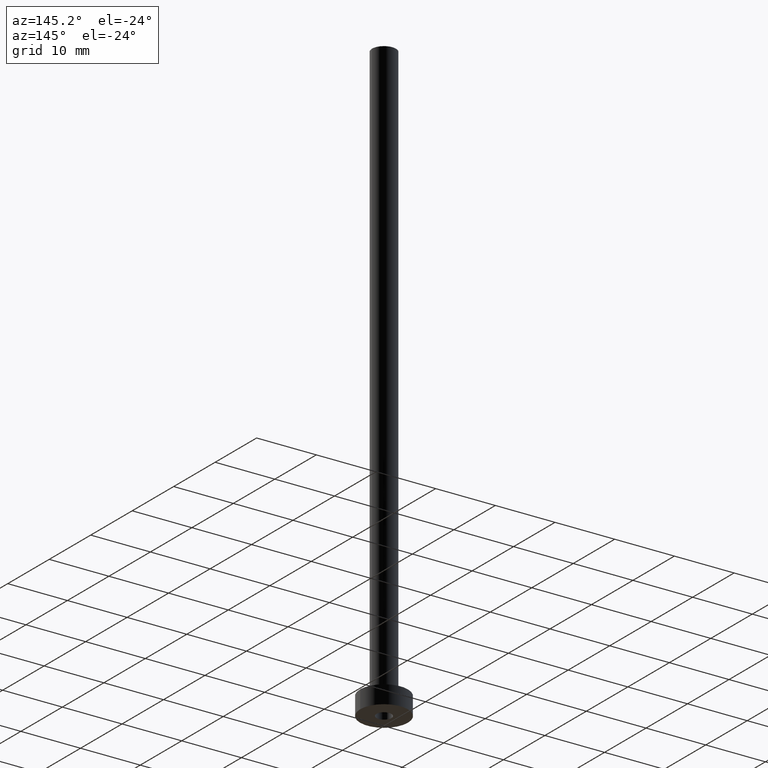
[diagram: clean part render]
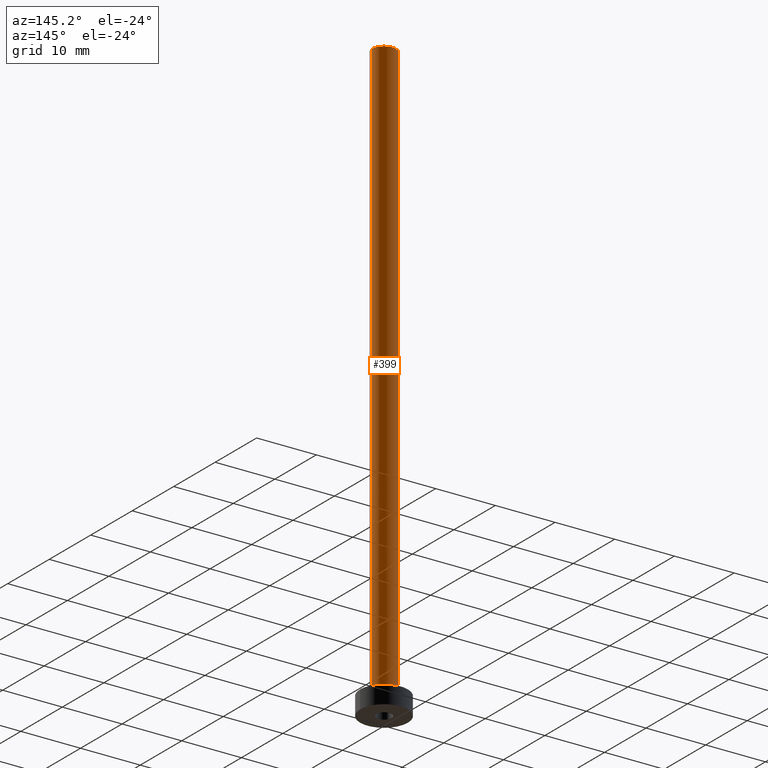
[diagram: same view with one face highlighted and labeled with its STEP entity id]
A machine part, auxiliary view. The second image highlights one B-rep face of the part: STEP entity #399.
In plain terms, the highlighted cylindrical surface (edge-blend (fillet) strip) has radius 2 mm, axis along (-0, -0, -1).
Its self-contained STEP definition (entity closure, byte-faithful):
#17 = DIRECTION ( 'NONE',  ( -0.000000000000000000, -0.000000000000000000, -1.000000000000000000 ) ) ;
#32 = DIRECTION ( 'NONE',  ( 0.000000000000000000, 0.000000000000000000, 1.000000000000000000 ) ) ;
#34 = FACE_OUTER_BOUND ( 'NONE', #317, .T. ) ;
#36 = EDGE_CURVE ( 'NONE', #276, #214, #257, .T. ) ;
#39 = ORIENTED_EDGE ( 'NONE', *, *, #36, .T. ) ;
#60 = CARTESIAN_POINT ( 'NONE',  ( 2.000000000000000000, 2.449293598294705921E-16, 3.299999999999997158 ) ) ;
#64 = EDGE_CURVE ( 'NONE', #276, #108, #298, .T. ) ;
#65 = CYLINDRICAL_SURFACE ( 'NONE', #244, 2.000000000000000000 ) ;
#73 = VERTEX_POINT ( 'NONE', #82 ) ;
#80 = CARTESIAN_POINT ( 'NONE',  ( 2.000000000000000000, 2.449293598294705921E-16, 100.0000000000000000 ) ) ;
#82 = CARTESIAN_POINT ( 'NONE',  ( -2.000000000000000000, 0.000000000000000000, 3.299999999999997158 ) ) ;
#107 = CARTESIAN_POINT ( 'NONE',  ( -2.000000000000000000, 0.000000000000000000, 100.0000000000000000 ) ) ;
#108 = VERTEX_POINT ( 'NONE', #442 ) ;
#115 = CARTESIAN_POINT ( 'NONE',  ( 0.000000000000000000, 0.000000000000000000, 100.0000000000000000 ) ) ;
#125 = ORIENTED_EDGE ( 'NONE', *, *, #411, .T. ) ;
#139 = CARTESIAN_POINT ( 'NONE',  ( 0.000000000000000000, 0.000000000000000000, 3.299999999999997158 ) ) ;
#143 = AXIS2_PLACEMENT_3D ( 'NONE', #139, #32, #425 ) ;
#144 = LINE ( 'NONE', #107, #394 ) ;
#175 = DIRECTION ( 'NONE',  ( -1.000000000000000000, 0.000000000000000000, 0.000000000000000000 ) ) ;
#176 = ORIENTED_EDGE ( 'NONE', *, *, #64, .F. ) ;
#203 = DIRECTION ( 'NONE',  ( -0.000000000000000000, -0.000000000000000000, -1.000000000000000000 ) ) ;
#214 = VERTEX_POINT ( 'NONE', #60 ) ;
#225 = VECTOR ( 'NONE', #17, 1000.000000000000000 ) ;
#244 = AXIS2_PLACEMENT_3D ( 'NONE', #314, #203, #175 ) ;
#250 = ORIENTED_EDGE ( 'NONE', *, *, #449, .F. ) ;
#257 = LINE ( 'NONE', #80, #225 ) ;
#276 = VERTEX_POINT ( 'NONE', #453 ) ;
#298 = CIRCLE ( 'NONE', #358, 2.000000000000000000 ) ;
#314 = CARTESIAN_POINT ( 'NONE',  ( 0.000000000000000000, 0.000000000000000000, 100.0000000000000000 ) ) ;
#317 = EDGE_LOOP ( 'NONE', ( #176, #39, #125, #250 ) ) ;
#326 = DIRECTION ( 'NONE',  ( 1.000000000000000000, 0.000000000000000000, 0.000000000000000000 ) ) ;
#336 = DIRECTION ( 'NONE',  ( 0.000000000000000000, 0.000000000000000000, 1.000000000000000000 ) ) ;
#355 = DIRECTION ( 'NONE',  ( -0.000000000000000000, -0.000000000000000000, -1.000000000000000000 ) ) ;
#358 = AXIS2_PLACEMENT_3D ( 'NONE', #115, #336, #326 ) ;
#394 = VECTOR ( 'NONE', #355, 1000.000000000000000 ) ;
#399 = ADVANCED_FACE ( 'NONE', ( #34 ), #65, .T. ) ;
#411 = EDGE_CURVE ( 'NONE', #214, #73, #450, .T. ) ;
#425 = DIRECTION ( 'NONE',  ( 1.000000000000000000, 0.000000000000000000, 0.000000000000000000 ) ) ;
#442 = CARTESIAN_POINT ( 'NONE',  ( -2.000000000000000000, 0.000000000000000000, 100.0000000000000000 ) ) ;
#449 = EDGE_CURVE ( 'NONE', #108, #73, #144, .T. ) ;
#450 = CIRCLE ( 'NONE', #143, 2.000000000000000000 ) ;
#453 = CARTESIAN_POINT ( 'NONE',  ( 2.000000000000000000, 2.449293598294705921E-16, 100.0000000000000000 ) ) ;